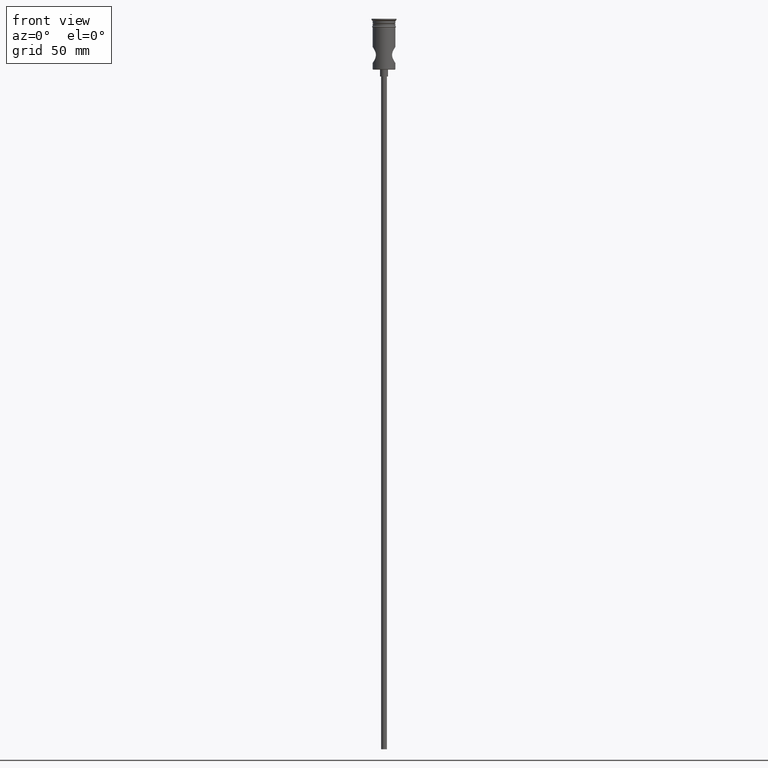
[diagram: clean part render]
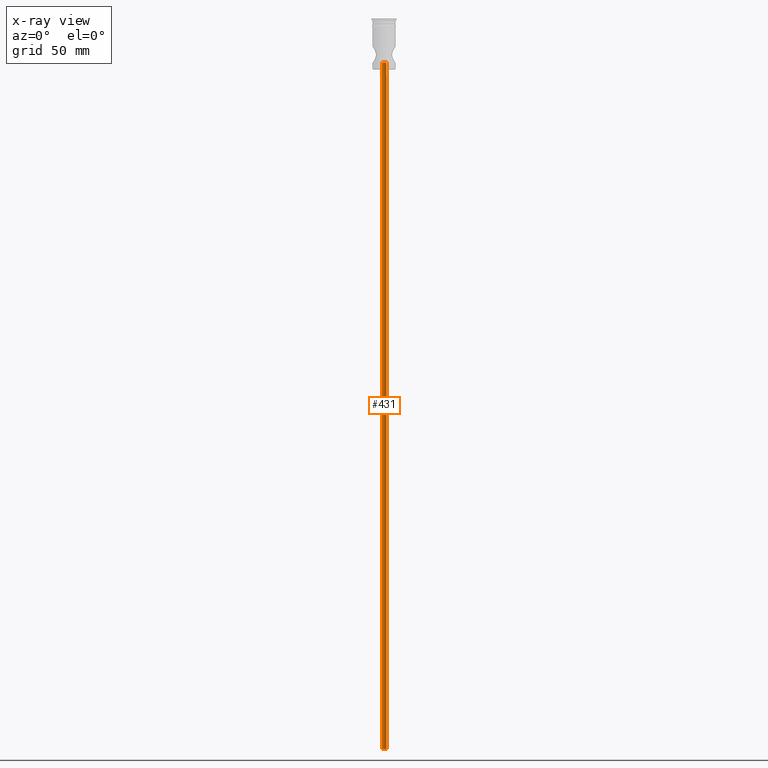
[diagram: x-ray — body ghosted, one internal face saturated and labeled with its STEP entity id]
A machine part, front view, then the same camera in x-ray: the body is ghosted and one INTERNAL B-rep face — a face not visible from any outside direction — is saturated and labeled: STEP entity #431.
In plain terms, the highlighted cylindrical surface (edge-blend (fillet) strip) has radius 1 mm, axis along (-0, -0, -1).
Its self-contained STEP definition (entity closure, byte-faithful):
#17 = CARTESIAN_POINT ( 'NONE',  ( -0.1316936354710128432, 1.000019739161273513, -19.35409608116890112 ) ) ;
#45 = CARTESIAN_POINT ( 'NONE',  ( 0.2621150761560532283, 0.9740305859285212087, -19.36214649845096858 ) ) ;
#84 = CARTESIAN_POINT ( 'NONE',  ( -1.000000000000000000, 0.000000000000000000, 0.0009999999999732445133 ) ) ;
#121 = VERTEX_POINT ( 'NONE', #1235 ) ;
#122 = CARTESIAN_POINT ( 'NONE',  ( 0.6150344307886690398, 0.7992185073637478876, -19.40883033734092322 ) ) ;
#134 = CARTESIAN_POINT ( 'NONE',  ( -1.000000000000000000, 0.000000000000000000, -322.5000000000000000 ) ) ;
#170 = CARTESIAN_POINT ( 'NONE',  ( 1.000000000000000000, 1.224646799147353207E-16, -322.5000000000000000 ) ) ;
#237 = EDGE_LOOP ( 'NONE', ( #276, #620, #741, #263 ) ) ;
#243 = CARTESIAN_POINT ( 'NONE',  ( -1.000000000000000000, 0.000000000000000000, -19.50000000000000000 ) ) ;
#254 = VERTEX_POINT ( 'NONE', #1215 ) ;
#255 = CARTESIAN_POINT ( 'NONE',  ( 0.7994811891185863439, 0.6146929329460447677, -19.44688657914280228 ) ) ;
#263 = ORIENTED_EDGE ( 'NONE', *, *, #474, .T. ) ;
#276 = ORIENTED_EDGE ( 'NONE', *, *, #481, .F. ) ;
#282 = VERTEX_POINT ( 'NONE', #134 ) ;
#304 = LINE ( 'NONE', #84, #1359 ) ;
#311 = CARTESIAN_POINT ( 'NONE',  ( 0.000000000000000000, 0.000000000000000000, 0.0009999999999732445133 ) ) ;
#334 = CARTESIAN_POINT ( 'NONE',  ( 1.000000000000000000, 1.224646799147353207E-16, 0.0009999999999732445133 ) ) ;
#344 = DIRECTION ( 'NONE',  ( -1.000000000000000000, 0.000000000000000000, 0.000000000000000000 ) ) ;
#362 = CARTESIAN_POINT ( 'NONE',  ( -0.8728688940508974037, 0.5051183550947857537, -19.46548068172155510 ) ) ;
#366 = CARTESIAN_POINT ( 'NONE',  ( -0.9732933389586853057, 0.2640922853737913134, -19.49212774291619965 ) ) ;
#426 = VECTOR ( 'NONE', #1196, 1000.000000000000000 ) ;
#431 = ADVANCED_FACE ( 'NONE', ( #956 ), #744, .F. ) ;
#459 = DIRECTION ( 'NONE',  ( 0.000000000000000000, 0.000000000000000000, -1.000000000000000000 ) ) ;
#474 = EDGE_CURVE ( 'NONE', #282, #1305, #973, .T. ) ;
#475 = CARTESIAN_POINT ( 'NONE',  ( -0.7985123707879597799, 0.6157855475276747814, -19.44667449721106323 ) ) ;
#481 = EDGE_CURVE ( 'NONE', #121, #1305, #1314, .T. ) ;
#484 = CARTESIAN_POINT ( 'NONE',  ( 1.000000000000000000, 0.1309286667429949147, -19.49999999999999645 ) ) ;
#499 = CARTESIAN_POINT ( 'NONE',  ( 0.1319932390273248490, 0.9999802383981537535, -19.35410785802095646 ) ) ;
#540 = EDGE_CURVE ( 'NONE', #121, #254, #884, .T. ) ;
#570 = CARTESIAN_POINT ( 'NONE',  ( -0.5041604651539031146, 0.8734111625493790054, -19.38966761113383086 ) ) ;
#575 = AXIS2_PLACEMENT_3D ( 'NONE', #674, #459, #344 ) ;
#620 = ORIENTED_EDGE ( 'NONE', *, *, #540, .T. ) ;
#674 = CARTESIAN_POINT ( 'NONE',  ( 0.000000000000000000, 0.000000000000000000, -322.5000000000000000 ) ) ;
#680 = CARTESIAN_POINT ( 'NONE',  ( 1.000000000000000000, 4.681958892246364514E-21, -19.50000000000000000 ) ) ;
#741 = ORIENTED_EDGE ( 'NONE', *, *, #1100, .T. ) ;
#744 = CYLINDRICAL_SURFACE ( 'NONE', #1141, 1.000000000000000000 ) ;
#787 = CARTESIAN_POINT ( 'NONE',  ( -1.000000000000000222, 0.1328548843624557663, -19.50000000000000355 ) ) ;
#840 = DIRECTION ( 'NONE',  ( -1.000000000000000000, 0.000000000000000000, 0.000000000000000000 ) ) ;
#848 = DIRECTION ( 'NONE',  ( -0.000000000000000000, -0.000000000000000000, -1.000000000000000000 ) ) ;
#884 = B_SPLINE_CURVE_WITH_KNOTS ( 'NONE', 3,
 ( #680, #484, #1249, #1355, #255, #122, #1108, #45, #499, #17, #899, #570, #1350, #475, #362, #366, #787, #243 ),
 .UNSPECIFIED., .F., .F.,
 ( 4, 2, 2, 2, 2, 2, 2, 2, 4 ),
 ( 0.003142913064405511523, 0.003535670621078468041, 0.003928428177751424125, 0.004321185734424380642, 0.004713943291097337160, 0.005106700847770293678, 0.005499458404443250195, 0.005892215961116205845, 0.006284973517789162363 ),
 .UNSPECIFIED. ) ;
#899 = CARTESIAN_POINT ( 'NONE',  ( -0.2631726871121145006, 0.9735322132565759068, -19.36228026829819271 ) ) ;
#956 = FACE_OUTER_BOUND ( 'NONE', #237, .T. ) ;
#973 = CIRCLE ( 'NONE', #575, 1.000000000000000000 ) ;
#1100 = EDGE_CURVE ( 'NONE', #254, #282, #304, .T. ) ;
#1108 = CARTESIAN_POINT ( 'NONE',  ( 0.5059809035076541228, 0.8725956800019867288, -19.38988811594309425 ) ) ;
#1141 = AXIS2_PLACEMENT_3D ( 'NONE', #311, #848, #840 ) ;
#1196 = DIRECTION ( 'NONE',  ( -0.000000000000000000, -0.000000000000000000, -1.000000000000000000 ) ) ;
#1215 = CARTESIAN_POINT ( 'NONE',  ( -1.000000000000000000, 0.000000000000000000, -19.50000000000000000 ) ) ;
#1235 = CARTESIAN_POINT ( 'NONE',  ( 1.000000000000000000, 4.681958892246364514E-21, -19.50000000000000000 ) ) ;
#1249 = CARTESIAN_POINT ( 'NONE',  ( 0.9735452106493993618, 0.2631358747190585823, -19.49219990523366519 ) ) ;
#1304 = DIRECTION ( 'NONE',  ( -0.000000000000000000, -0.000000000000000000, -1.000000000000000000 ) ) ;
#1305 = VERTEX_POINT ( 'NONE', #170 ) ;
#1314 = LINE ( 'NONE', #334, #426 ) ;
#1350 = CARTESIAN_POINT ( 'NONE',  ( -0.6150493311797187168, 0.7990795749240167112, -19.40884566432808001 ) ) ;
#1355 = CARTESIAN_POINT ( 'NONE',  ( 0.8734106350840727950, 0.5041672621904196294, -19.46561914214669287 ) ) ;
#1359 = VECTOR ( 'NONE', #1304, 1000.000000000000000 ) ;